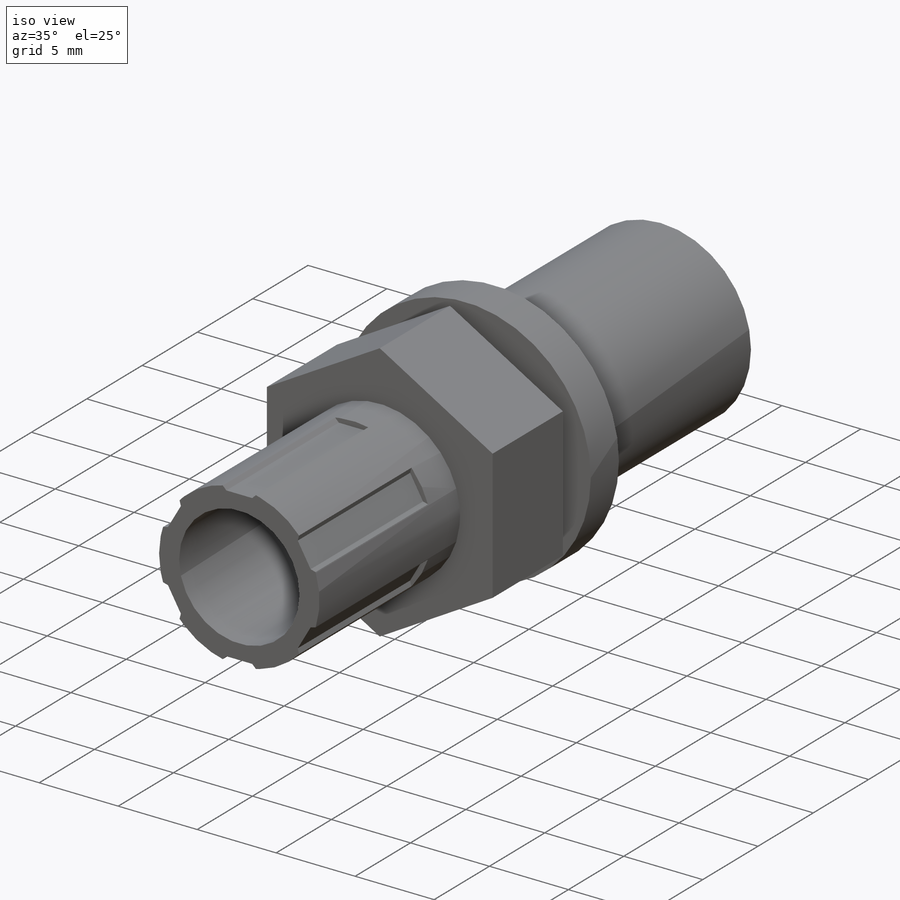
[diagram: iso view]
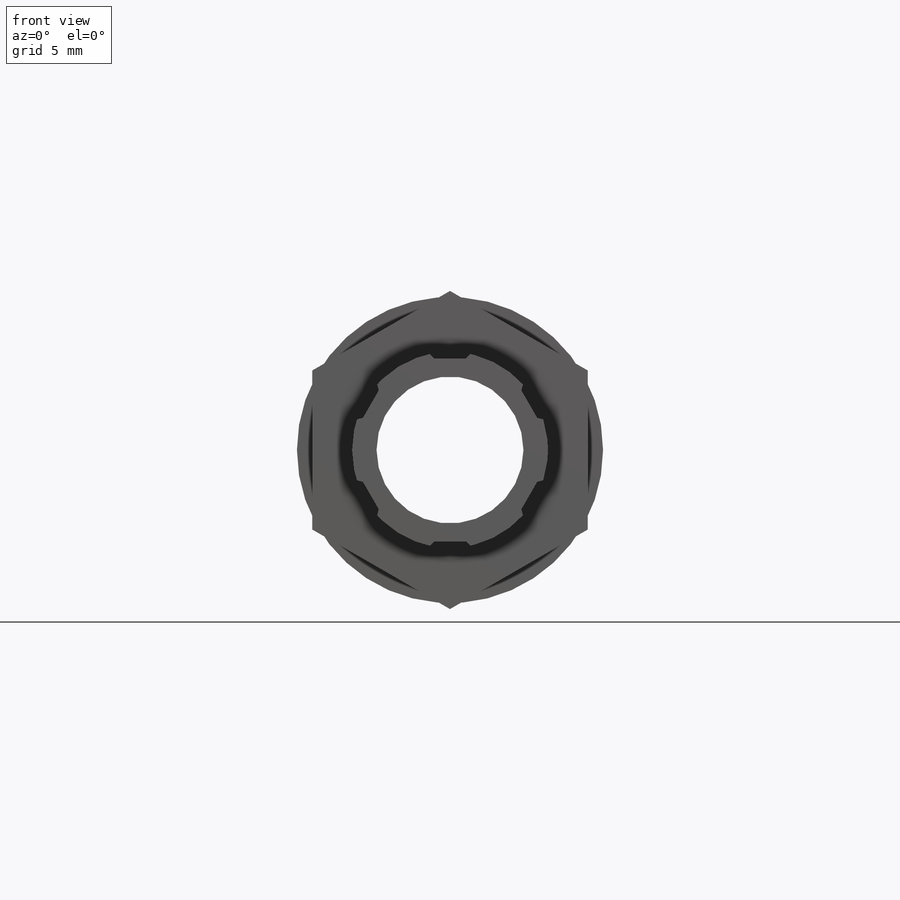
[diagram: front view]
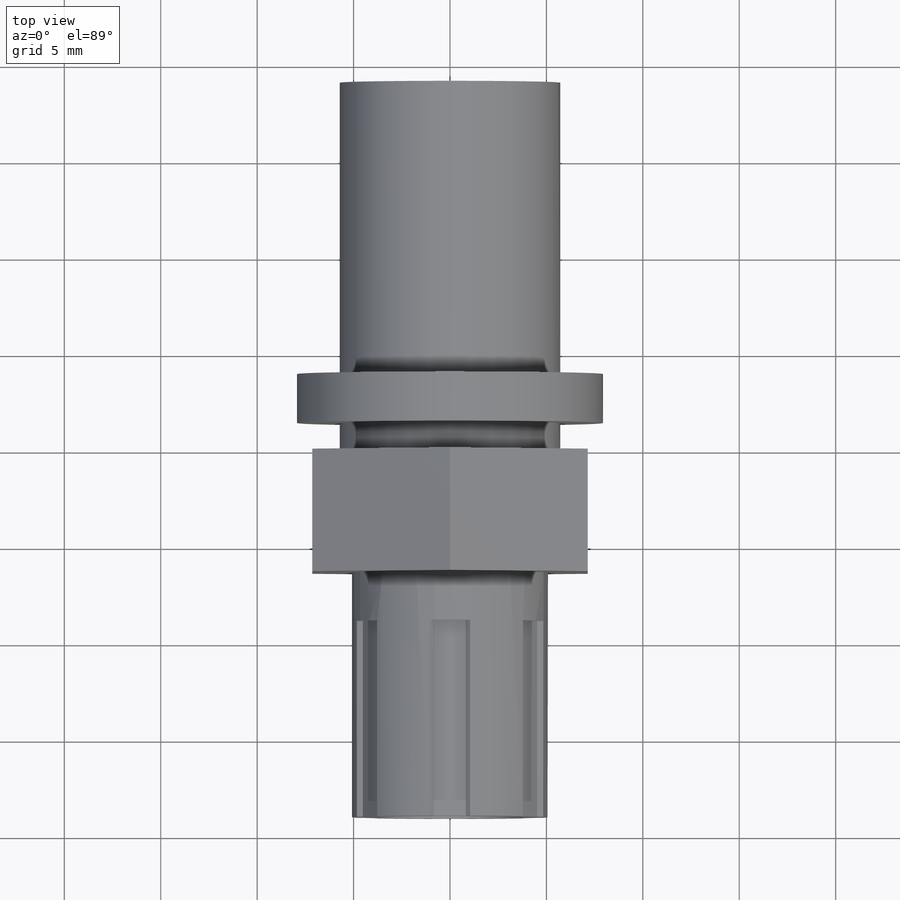
[diagram: top view]
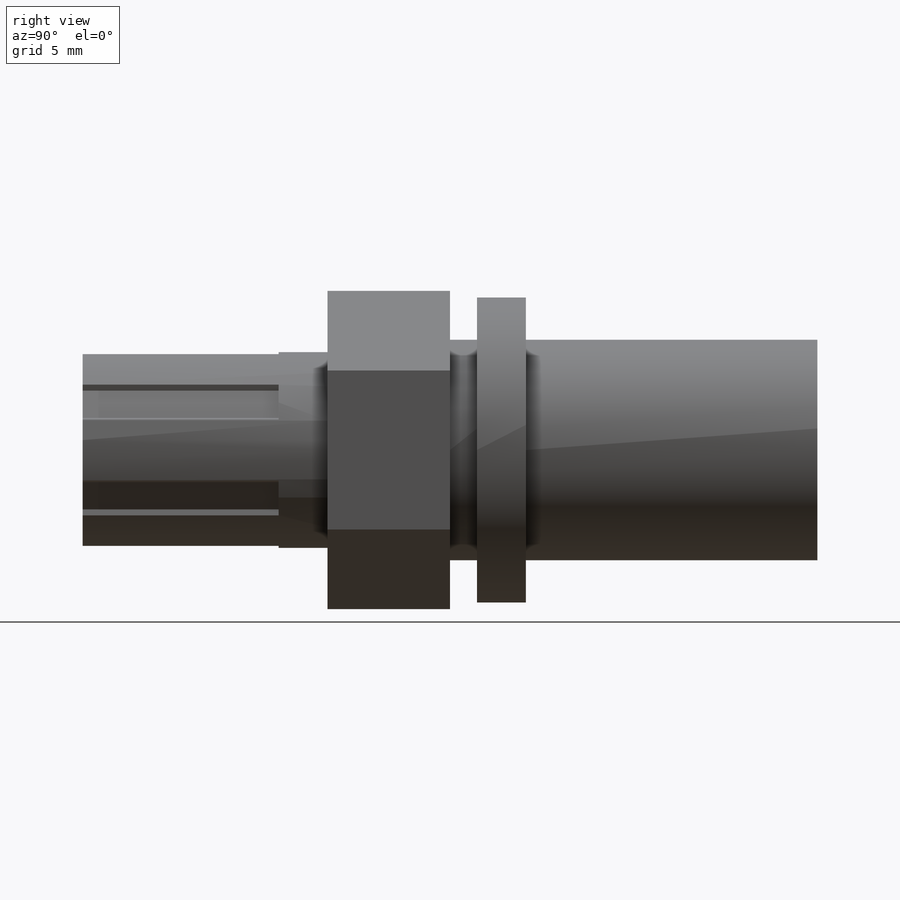
[diagram: right view]
SOLIDWORKS PART (.sldprt)
format: sldprt  version: not decoded by parser v0  size: 313,856 bytes
history: native  units: mm
features: sketch x6, extrude x4, cut_extrude x2, material x1, plane x1, pattern_circular x1 (+13 scaffold rows collapsed)
feature tree (28):
  scaffold x13  (default folders/planes/origin — collapsed)
  material  "Alloy Steel"
  sketch  "Sketch1"  dims[D1=14.2875mm]
  extrude  "Boss-Extrude1"  Depth=6.35mm
  sketch  "Sketch2"  dims[D1=7.62mm D2=10.16mm]
  extrude  "Boss-Extrude2"  Depth=12.7mm
  sketch  "Sketch3"  dims[D1=11.43mm]
  extrude  "Boss-Extrude3"  Depth=19.05mm
  plane  "Plane1"  Offset=1.397mm
  sketch  "Sketch4"
  extrude  "Boss-Extrude4"  Depth=2.54mm
  sketch  "Sketch5"
  cut_extrude  "Cut-Extrude1"  [1 undecoded]
  sketch  "Sketch6"  dims[D1=2.54mm]
  cut_extrude  "Cut-Extrude2"  Depth=10.16mm
  pattern_circular  "CirPattern1"  Count=6 Angle=360deg
decode coverage: 10 of 13 modeling features carry decoded parameters
note: 1 parameter value undecoded
note: suppression state not decoded; provenance and decode notes live in map.json
